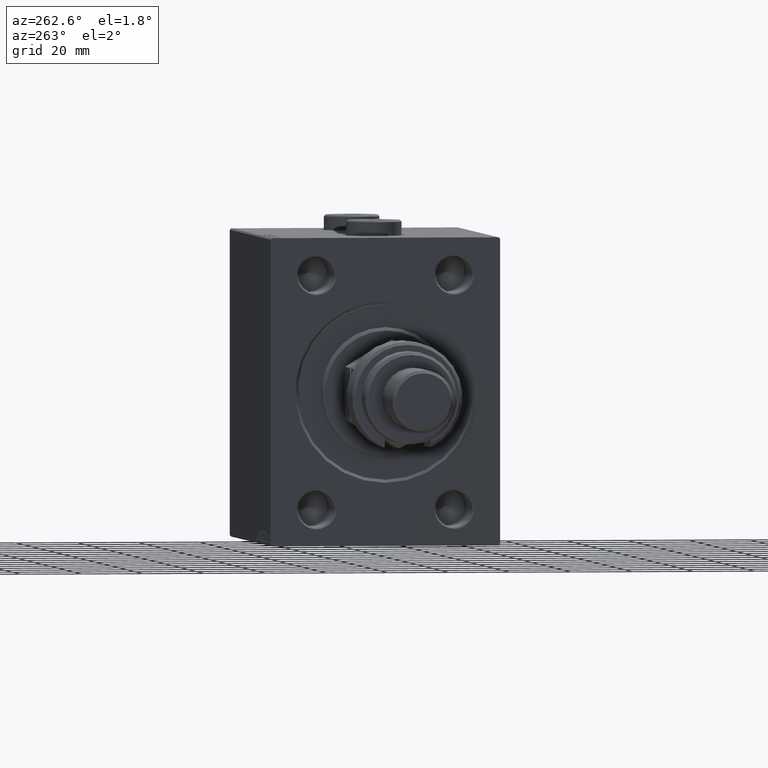
[diagram: clean part render]
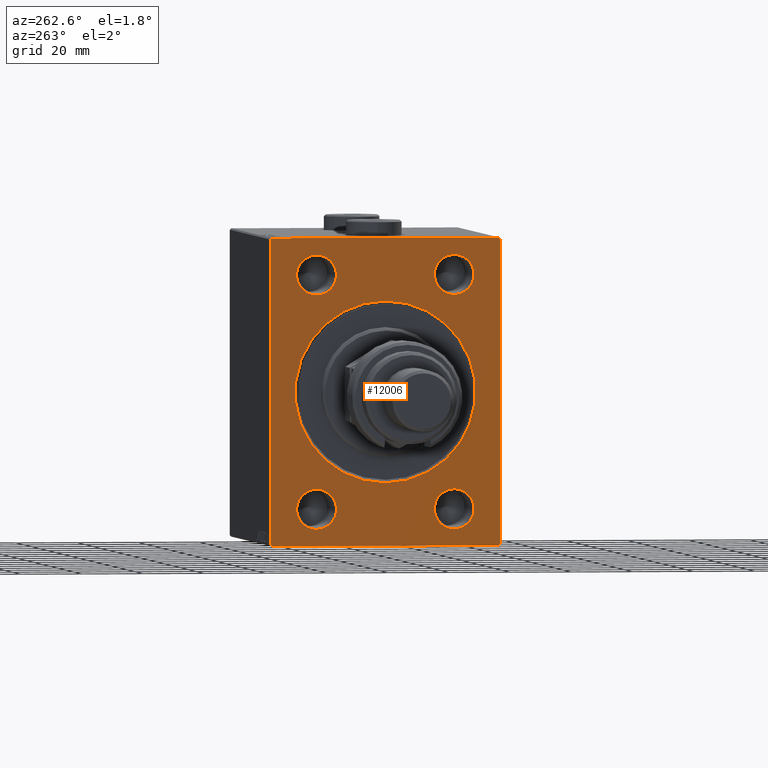
[diagram: same view with one face highlighted and labeled with its STEP entity id]
A machine part, auxiliary view. The second image highlights one B-rep face of the part: STEP entity #12006.
In plain terms, the highlighted planar face has unit normal (1, 0, 0).
Its self-contained STEP definition (entity closure, byte-faithful):
#16 = CARTESIAN_POINT ( 'NONE',  ( 0.000000000000000000, 22.50000000000000000, -38.00000000000000711 ) ) ;
#526 = CARTESIAN_POINT ( 'NONE',  ( 0.000000000000000000, -22.50000000000000000, -44.50000000000001421 ) ) ;
#692 = DIRECTION ( 'NONE',  ( 0.000000000000000000, 0.000000000000000000, -1.000000000000000000 ) ) ;
#1127 = CARTESIAN_POINT ( 'NONE',  ( 0.000000000000000000, -22.50000000000000000, -38.00000000000000711 ) ) ;
#1270 = ORIENTED_EDGE ( 'NONE', *, *, #41046, .T. ) ;
#1803 = EDGE_LOOP ( 'NONE', ( #41512, #44653 ) ) ;
#2388 = FACE_BOUND ( 'NONE', #16762, .T. ) ;
#2389 = VERTEX_POINT ( 'NONE', #29506 ) ;
#2706 = DIRECTION ( 'NONE',  ( -0.000000000000000000, -0.7071067811865474617, 0.7071067811865474617 ) ) ;
#2900 = LINE ( 'NONE', #21315, #17803 ) ;
#2908 = CARTESIAN_POINT ( 'NONE',  ( 0.000000000000000000, -22.50000000000000000, -31.50000000000000000 ) ) ;
#3471 = EDGE_CURVE ( 'NONE', #13976, #25176, #16848, .T. ) ;
#3702 = VERTEX_POINT ( 'NONE', #34968 ) ;
#4266 = VERTEX_POINT ( 'NONE', #4848 ) ;
#4848 = CARTESIAN_POINT ( 'NONE',  ( 0.000000000000000000, 22.50000000000000000, -31.50000000000000000 ) ) ;
#5119 = ORIENTED_EDGE ( 'NONE', *, *, #41445, .T. ) ;
#5371 = EDGE_CURVE ( 'NONE', #5881, #25176, #2900, .T. ) ;
#5525 = DIRECTION ( 'NONE',  ( 1.000000000000000000, 0.000000000000000000, 0.000000000000000000 ) ) ;
#5682 = EDGE_LOOP ( 'NONE', ( #38830, #36095 ) ) ;
#5881 = VERTEX_POINT ( 'NONE', #44553 ) ;
#6048 = DIRECTION ( 'NONE',  ( 0.000000000000000000, -1.000000000000000000, -2.775557561562891844E-16 ) ) ;
#6051 = LINE ( 'NONE', #24464, #10861 ) ;
#6403 = DIRECTION ( 'NONE',  ( 0.000000000000000000, 0.000000000000000000, -1.000000000000000000 ) ) ;
#6985 = CIRCLE ( 'NONE', #24218, 6.500000000000005329 ) ;
#7112 = CIRCLE ( 'NONE', #47899, 6.500000000000005329 ) ;
#7583 = EDGE_CURVE ( 'NONE', #41953, #35493, #33495, .T. ) ;
#8118 = CARTESIAN_POINT ( 'NONE',  ( 0.000000000000000000, 22.50000000000000000, 31.49999999999998579 ) ) ;
#8393 = VERTEX_POINT ( 'NONE', #8118 ) ;
#8523 = VERTEX_POINT ( 'NONE', #2908 ) ;
#9424 = CARTESIAN_POINT ( 'NONE',  ( 0.000000000000000000, -22.50000000000000000, 37.99999999999999289 ) ) ;
#9480 = CIRCLE ( 'NONE', #45505, 6.500000000000005329 ) ;
#9503 = VERTEX_POINT ( 'NONE', #33821 ) ;
#9599 = CARTESIAN_POINT ( 'NONE',  ( 0.000000000000000000, -37.50000000000000000, 49.99999999999998579 ) ) ;
#9689 = ORIENTED_EDGE ( 'NONE', *, *, #7583, .T. ) ;
#9699 = DIRECTION ( 'NONE',  ( -0.000000000000000000, 0.7071067811865328068, 0.7071067811865622277 ) ) ;
#9752 = CARTESIAN_POINT ( 'NONE',  ( 0.000000000000000000, 36.99999999999999289, 50.00000000000000711 ) ) ;
#10054 = DIRECTION ( 'NONE',  ( 1.000000000000000000, 0.000000000000000000, 0.000000000000000000 ) ) ;
#10085 = CARTESIAN_POINT ( 'NONE',  ( 0.000000000000000000, -22.50000000000000000, 37.99999999999999289 ) ) ;
#10273 = VECTOR ( 'NONE', #6048, 1000.000000000000000 ) ;
#10517 = DIRECTION ( 'NONE',  ( 1.000000000000000000, 0.000000000000000000, 0.000000000000000000 ) ) ;
#10814 = CARTESIAN_POINT ( 'NONE',  ( 0.000000000000000000, 3.612708057484691604E-15, -29.50000000000000355 ) ) ;
#10861 = VECTOR ( 'NONE', #20531, 1000.000000000000000 ) ;
#11310 = DIRECTION ( 'NONE',  ( 0.000000000000000000, 0.000000000000000000, -1.000000000000000000 ) ) ;
#11610 = EDGE_CURVE ( 'NONE', #14759, #4266, #37579, .T. ) ;
#11641 = VERTEX_POINT ( 'NONE', #18915 ) ;
#11745 = CARTESIAN_POINT ( 'NONE',  ( 0.000000000000000000, 22.50000000000000000, 37.99999999999999289 ) ) ;
#11758 = CIRCLE ( 'NONE', #44697, 6.500000000000005329 ) ;
#12006 = ADVANCED_FACE ( 'NONE', ( #2388, #47784, #44336, #14390, #43872, #36020 ), #29125, .F. ) ;
#12822 = ORIENTED_EDGE ( 'NONE', *, *, #48461, .T. ) ;
#13275 = LINE ( 'NONE', #36347, #40928 ) ;
#13716 = CARTESIAN_POINT ( 'NONE',  ( 0.000000000000000000, 22.50000000000000000, 37.99999999999999289 ) ) ;
#13835 = CARTESIAN_POINT ( 'NONE',  ( 0.000000000000000000, 0.000000000000000000, 0.000000000000000000 ) ) ;
#13976 = VERTEX_POINT ( 'NONE', #31276 ) ;
#14052 = ORIENTED_EDGE ( 'NONE', *, *, #46999, .T. ) ;
#14289 = CIRCLE ( 'NONE', #34685, 29.50000000000000355 ) ;
#14390 = FACE_BOUND ( 'NONE', #5682, .T. ) ;
#14759 = VERTEX_POINT ( 'NONE', #28563 ) ;
#14986 = DIRECTION ( 'NONE',  ( 1.000000000000000000, 0.000000000000000000, 0.000000000000000000 ) ) ;
#15007 = CARTESIAN_POINT ( 'NONE',  ( 0.000000000000000000, -37.50000000000000000, 49.49999999999995737 ) ) ;
#16762 = EDGE_LOOP ( 'NONE', ( #12822, #9689 ) ) ;
#16848 = LINE ( 'NONE', #9752, #32756 ) ;
#17566 = CARTESIAN_POINT ( 'NONE',  ( 0.000000000000000000, 0.000000000000000000, 29.50000000000000355 ) ) ;
#17803 = VECTOR ( 'NONE', #21785, 1000.000000000000000 ) ;
#18169 = CARTESIAN_POINT ( 'NONE',  ( 0.000000000000000000, 37.49999999999999289, 49.50000000000000000 ) ) ;
#18186 = CIRCLE ( 'NONE', #40938, 6.500000000000005329 ) ;
#18606 = AXIS2_PLACEMENT_3D ( 'NONE', #29561, #44545, #40886 ) ;
#18915 = CARTESIAN_POINT ( 'NONE',  ( 0.000000000000000000, -22.50000000000000000, 44.50000000000000000 ) ) ;
#18926 = EDGE_CURVE ( 'NONE', #37718, #3702, #43466, .T. ) ;
#19157 = EDGE_CURVE ( 'NONE', #2389, #9503, #46827, .T. ) ;
#20376 = ORIENTED_EDGE ( 'NONE', *, *, #3471, .T. ) ;
#20531 = DIRECTION ( 'NONE',  ( 0.000000000000000000, -0.7071067811865426878, -0.7071067811865524577 ) ) ;
#20726 = DIRECTION ( 'NONE',  ( 0.000000000000000000, 0.000000000000000000, -1.000000000000000000 ) ) ;
#20838 = DIRECTION ( 'NONE',  ( 0.000000000000000000, 0.000000000000000000, -1.000000000000000000 ) ) ;
#20859 = DIRECTION ( 'NONE',  ( 0.000000000000000000, 0.000000000000000000, -1.000000000000000000 ) ) ;
#20878 = EDGE_CURVE ( 'NONE', #4266, #14759, #18186, .T. ) ;
#21315 = CARTESIAN_POINT ( 'NONE',  ( 0.000000000000000000, 37.50000000000000711, -50.00000000000000000 ) ) ;
#21785 = DIRECTION ( 'NONE',  ( 0.000000000000000000, -1.387778780781445676E-16, 1.000000000000000000 ) ) ;
#22639 = CARTESIAN_POINT ( 'NONE',  ( 0.000000000000000000, -36.99999999999999289, 49.99999999999998579 ) ) ;
#22723 = AXIS2_PLACEMENT_3D ( 'NONE', #9424, #28303, #36638 ) ;
#23134 = ORIENTED_EDGE ( 'NONE', *, *, #35356, .T. ) ;
#23471 = AXIS2_PLACEMENT_3D ( 'NONE', #16, #14986, #11310 ) ;
#23522 = ORIENTED_EDGE ( 'NONE', *, *, #20878, .T. ) ;
#23652 = ORIENTED_EDGE ( 'NONE', *, *, #36017, .T. ) ;
#24218 = AXIS2_PLACEMENT_3D ( 'NONE', #26200, #10517, #41186 ) ;
#24464 = CARTESIAN_POINT ( 'NONE',  ( 0.000000000000000000, 37.50000000000000711, -49.50000000000000000 ) ) ;
#24696 = CARTESIAN_POINT ( 'NONE',  ( 0.000000000000000000, 37.49999999999999289, 50.00000000000000711 ) ) ;
#24935 = LINE ( 'NONE', #24696, #10273 ) ;
#25176 = VERTEX_POINT ( 'NONE', #18169 ) ;
#25181 = DIRECTION ( 'NONE',  ( -0.000000000000000000, 0.7071067811865425767, -0.7071067811865525687 ) ) ;
#25455 = DIRECTION ( 'NONE',  ( 1.000000000000000000, 0.000000000000000000, 0.000000000000000000 ) ) ;
#25679 = DIRECTION ( 'NONE',  ( 1.000000000000000000, 0.000000000000000000, 0.000000000000000000 ) ) ;
#26200 = CARTESIAN_POINT ( 'NONE',  ( 0.000000000000000000, -22.50000000000000000, -38.00000000000000711 ) ) ;
#26715 = DIRECTION ( 'NONE',  ( 1.000000000000000000, 0.000000000000000000, 0.000000000000000000 ) ) ;
#27540 = VECTOR ( 'NONE', #9699, 1000.000000000000000 ) ;
#27693 = CARTESIAN_POINT ( 'NONE',  ( 0.000000000000000000, 22.50000000000000000, -38.00000000000000711 ) ) ;
#27839 = CARTESIAN_POINT ( 'NONE',  ( 0.000000000000000000, -37.50000000000000000, 49.49999999999995737 ) ) ;
#27924 = EDGE_LOOP ( 'NONE', ( #1270, #23652 ) ) ;
#28108 = CARTESIAN_POINT ( 'NONE',  ( 0.000000000000000000, -22.50000000000000000, 31.49999999999998579 ) ) ;
#28303 = DIRECTION ( 'NONE',  ( 1.000000000000000000, 0.000000000000000000, 0.000000000000000000 ) ) ;
#28436 = ORIENTED_EDGE ( 'NONE', *, *, #11610, .T. ) ;
#28563 = CARTESIAN_POINT ( 'NONE',  ( 0.000000000000000000, 22.50000000000000000, -44.50000000000001421 ) ) ;
#29125 = PLANE ( 'NONE',  #39171 ) ;
#29506 = CARTESIAN_POINT ( 'NONE',  ( 0.000000000000000000, -37.00000000000000000, -50.00000000000000000 ) ) ;
#29561 = CARTESIAN_POINT ( 'NONE',  ( 0.000000000000000000, 0.000000000000000000, 0.000000000000000000 ) ) ;
#29766 = CIRCLE ( 'NONE', #22723, 6.500000000000005329 ) ;
#30051 = VERTEX_POINT ( 'NONE', #28108 ) ;
#30313 = ORIENTED_EDGE ( 'NONE', *, *, #5371, .F. ) ;
#30834 = DIRECTION ( 'NONE',  ( 0.000000000000000000, 0.000000000000000000, -1.000000000000000000 ) ) ;
#31276 = CARTESIAN_POINT ( 'NONE',  ( 0.000000000000000000, 36.99999999999999289, 50.00000000000000711 ) ) ;
#31287 = LINE ( 'NONE', #27839, #27540 ) ;
#31553 = EDGE_CURVE ( 'NONE', #8393, #43052, #43681, .T. ) ;
#32701 = AXIS2_PLACEMENT_3D ( 'NONE', #11745, #26715, #692 ) ;
#32756 = VECTOR ( 'NONE', #25181, 999.9999999999998863 ) ;
#33495 = CIRCLE ( 'NONE', #18606, 29.50000000000000355 ) ;
#33821 = CARTESIAN_POINT ( 'NONE',  ( 0.000000000000000000, 37.00000000000001421, -50.00000000000000000 ) ) ;
#34522 = DIRECTION ( 'NONE',  ( 1.000000000000000000, 0.000000000000000000, 0.000000000000000000 ) ) ;
#34569 = EDGE_LOOP ( 'NONE', ( #40283, #5119, #43295, #20376, #30313, #23134, #42732, #14052 ) ) ;
#34685 = AXIS2_PLACEMENT_3D ( 'NONE', #13835, #5525, #20726 ) ;
#34968 = CARTESIAN_POINT ( 'NONE',  ( 0.000000000000000000, -37.50000000000000000, -49.49999999999997158 ) ) ;
#35356 = EDGE_CURVE ( 'NONE', #5881, #9503, #6051, .T. ) ;
#35493 = VERTEX_POINT ( 'NONE', #17566 ) ;
#35547 = DIRECTION ( 'NONE',  ( 0.000000000000000000, 1.000000000000000000, 0.000000000000000000 ) ) ;
#36017 = EDGE_CURVE ( 'NONE', #44284, #8523, #6985, .T. ) ;
#36020 = FACE_OUTER_BOUND ( 'NONE', #34569, .T. ) ;
#36095 = ORIENTED_EDGE ( 'NONE', *, *, #31553, .T. ) ;
#36284 = DIRECTION ( 'NONE',  ( 0.000000000000000000, 0.000000000000000000, -1.000000000000000000 ) ) ;
#36347 = CARTESIAN_POINT ( 'NONE',  ( 0.000000000000000000, -37.00000000000000000, -50.00000000000000000 ) ) ;
#36638 = DIRECTION ( 'NONE',  ( 0.000000000000000000, 0.000000000000000000, -1.000000000000000000 ) ) ;
#37579 = CIRCLE ( 'NONE', #23471, 6.500000000000005329 ) ;
#37718 = VERTEX_POINT ( 'NONE', #15007 ) ;
#38518 = VECTOR ( 'NONE', #35547, 1000.000000000000000 ) ;
#38830 = ORIENTED_EDGE ( 'NONE', *, *, #42377, .T. ) ;
#39171 = AXIS2_PLACEMENT_3D ( 'NONE', #43406, #25679, #44111 ) ;
#40283 = ORIENTED_EDGE ( 'NONE', *, *, #18926, .F. ) ;
#40447 = CARTESIAN_POINT ( 'NONE',  ( 0.000000000000000000, 22.50000000000000000, 44.50000000000000000 ) ) ;
#40886 = DIRECTION ( 'NONE',  ( 0.000000000000000000, 0.000000000000000000, -1.000000000000000000 ) ) ;
#40928 = VECTOR ( 'NONE', #2706, 1000.000000000000114 ) ;
#40938 = AXIS2_PLACEMENT_3D ( 'NONE', #27693, #25455, #36284 ) ;
#41046 = EDGE_CURVE ( 'NONE', #8523, #44284, #7112, .T. ) ;
#41186 = DIRECTION ( 'NONE',  ( 0.000000000000000000, 0.000000000000000000, -1.000000000000000000 ) ) ;
#41445 = EDGE_CURVE ( 'NONE', #37718, #41769, #31287, .T. ) ;
#41512 = ORIENTED_EDGE ( 'NONE', *, *, #43232, .T. ) ;
#41769 = VERTEX_POINT ( 'NONE', #22639 ) ;
#41953 = VERTEX_POINT ( 'NONE', #10814 ) ;
#42377 = EDGE_CURVE ( 'NONE', #43052, #8393, #11758, .T. ) ;
#42679 = CARTESIAN_POINT ( 'NONE',  ( 0.000000000000000000, -37.50000000000000000, -50.00000000000000000 ) ) ;
#42732 = ORIENTED_EDGE ( 'NONE', *, *, #19157, .F. ) ;
#42995 = DIRECTION ( 'NONE',  ( 1.000000000000000000, 0.000000000000000000, 0.000000000000000000 ) ) ;
#43052 = VERTEX_POINT ( 'NONE', #40447 ) ;
#43232 = EDGE_CURVE ( 'NONE', #11641, #30051, #29766, .T. ) ;
#43235 = VECTOR ( 'NONE', #20859, 1000.000000000000000 ) ;
#43295 = ORIENTED_EDGE ( 'NONE', *, *, #45016, .F. ) ;
#43406 = CARTESIAN_POINT ( 'NONE',  ( 0.000000000000000000, 0.000000000000000000, 0.000000000000000000 ) ) ;
#43466 = LINE ( 'NONE', #9599, #43235 ) ;
#43534 = EDGE_CURVE ( 'NONE', #30051, #11641, #9480, .T. ) ;
#43681 = CIRCLE ( 'NONE', #32701, 6.500000000000005329 ) ;
#43872 = FACE_BOUND ( 'NONE', #47922, .T. ) ;
#44111 = DIRECTION ( 'NONE',  ( 0.000000000000000000, 0.000000000000000000, -1.000000000000000000 ) ) ;
#44284 = VERTEX_POINT ( 'NONE', #526 ) ;
#44336 = FACE_BOUND ( 'NONE', #1803, .T. ) ;
#44545 = DIRECTION ( 'NONE',  ( 1.000000000000000000, 0.000000000000000000, 0.000000000000000000 ) ) ;
#44553 = CARTESIAN_POINT ( 'NONE',  ( 0.000000000000000000, 37.50000000000000711, -49.50000000000000000 ) ) ;
#44653 = ORIENTED_EDGE ( 'NONE', *, *, #43534, .T. ) ;
#44697 = AXIS2_PLACEMENT_3D ( 'NONE', #13716, #10054, #20838 ) ;
#45016 = EDGE_CURVE ( 'NONE', #13976, #41769, #24935, .T. ) ;
#45505 = AXIS2_PLACEMENT_3D ( 'NONE', #10085, #42995, #6403 ) ;
#46827 = LINE ( 'NONE', #42679, #38518 ) ;
#46999 = EDGE_CURVE ( 'NONE', #2389, #3702, #13275, .T. ) ;
#47784 = FACE_BOUND ( 'NONE', #27924, .T. ) ;
#47899 = AXIS2_PLACEMENT_3D ( 'NONE', #1127, #34522, #30834 ) ;
#47922 = EDGE_LOOP ( 'NONE', ( #23522, #28436 ) ) ;
#48461 = EDGE_CURVE ( 'NONE', #35493, #41953, #14289, .T. ) ;